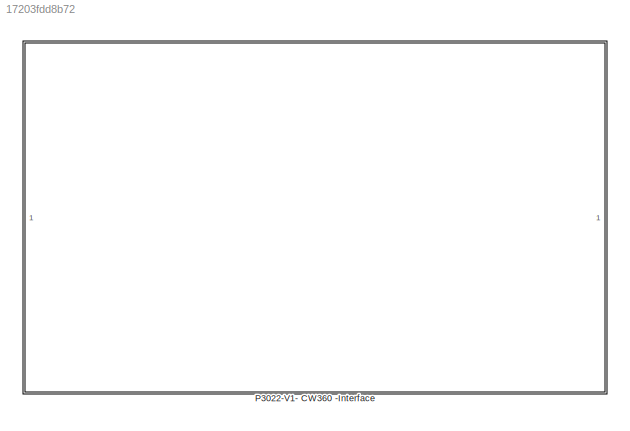
MODEL slx_17203fdd8b72
KIND model
CONFIG AbsTol = auto
CONFIG EnableMultiTasking = on
CONFIG FixedStep = auto
CONFIG MaxStep = auto
CONFIG MinStep = auto
CONFIG RelTol = 1e-3
CONFIG SampleTimeConstraint = Unconstrained
CONFIG SolverName = FixedStepAuto
CONFIG StartTime = 0.0
CONFIG StopTime = inf
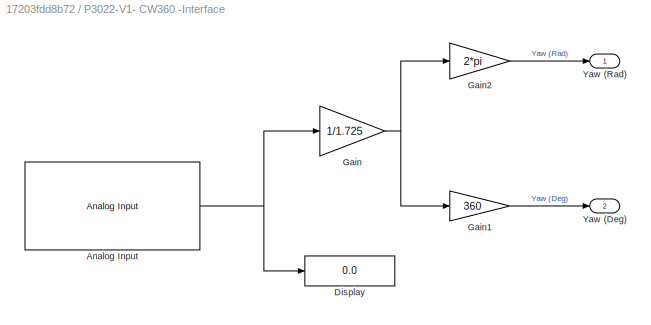
BLOCK [SubSystem] P3022-V1- CW360 -Interface
BLOCK [Reference] P3022-V1- CW360 -Interface/Analog Input  REF=bbblueBasicLib/Analog Input
  SourceBlock = bbblueBasicLib/Analog Input
  SourceType = beagleboneblue.bbblueADC
BLOCK [Display] P3022-V1- CW360 -Interface/Display
  Decimation = 1
BLOCK [Gain] P3022-V1- CW360 -Interface/Gain
  Gain = 1/1.725
BLOCK [Gain] P3022-V1- CW360 -Interface/Gain1
  Gain = 360
BLOCK [Gain] P3022-V1- CW360 -Interface/Gain2
  Gain = 2*pi
BLOCK [Outport] P3022-V1- CW360 -Interface/Yaw (Deg)
  Port = 2
BLOCK [Outport] P3022-V1- CW360 -Interface/Yaw (Rad)
NET P3022-V1- CW360 -Interface/Analog Input:1 -> P3022-V1- CW360 -Interface/Display:1, P3022-V1- CW360 -Interface/Gain:1
LINE P3022-V1- CW360 -Interface/Gain1:1 -> P3022-V1- CW360 -Interface/Yaw (Deg):1
LINE P3022-V1- CW360 -Interface/Gain2:1 -> P3022-V1- CW360 -Interface/Yaw (Rad):1
NET P3022-V1- CW360 -Interface/Gain:1 -> P3022-V1- CW360 -Interface/Gain1:1, P3022-V1- CW360 -Interface/Gain2:1
note: NET lines group one-source signal fan-out (src -> all destinations, sorted); 1:1 wires keep LINE
